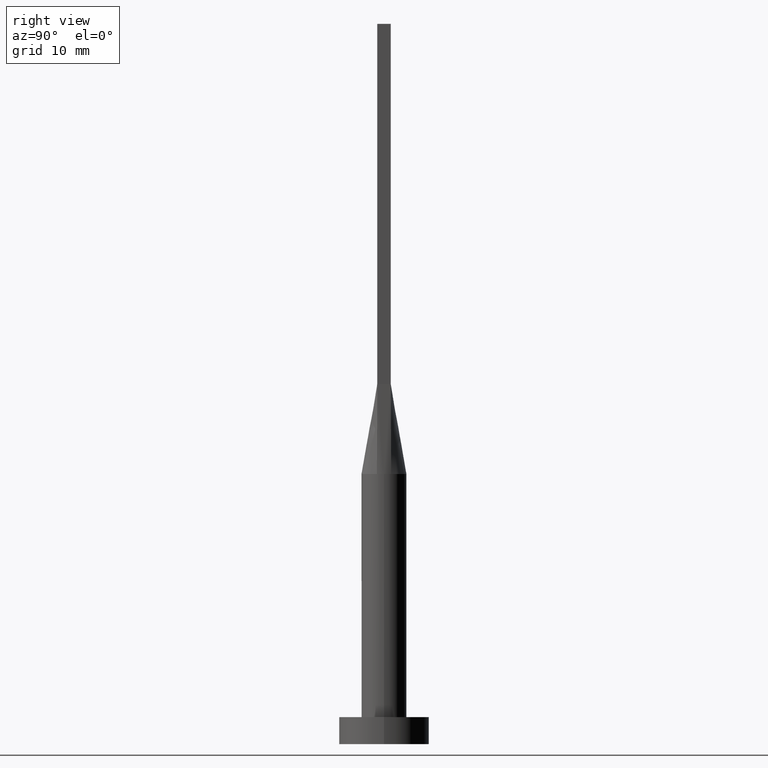
[diagram: clean part render]
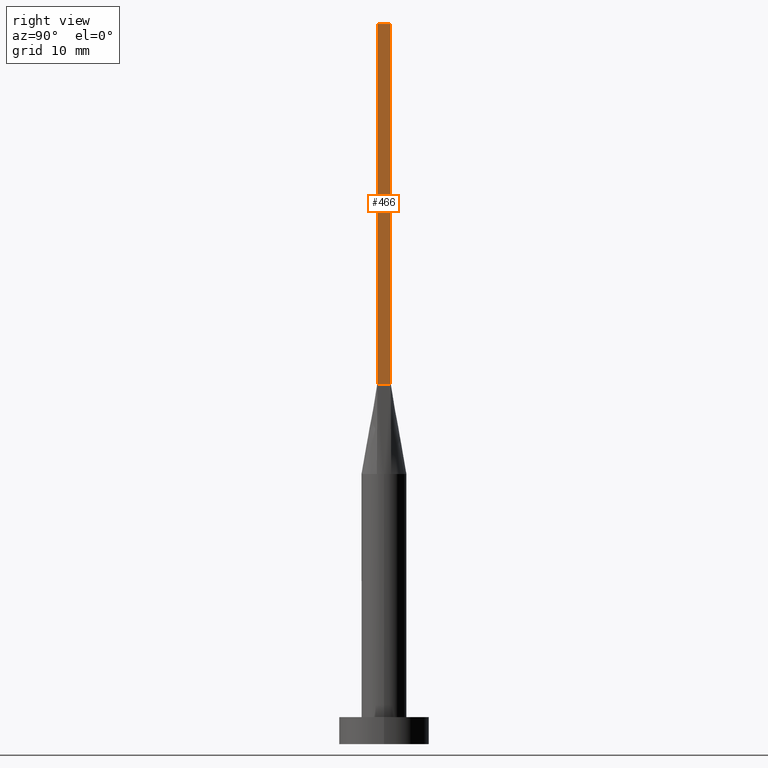
[diagram: same view with one face highlighted and labeled with its STEP entity id]
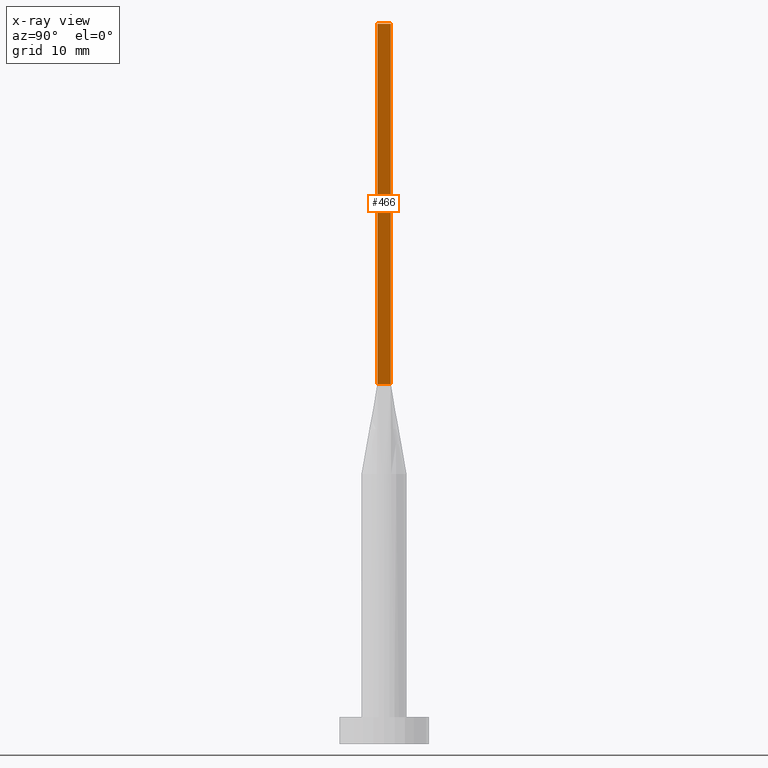
[diagram: x-ray of the same camera — body ghosted, the highlighted face saturated]
A machine part, right view. The second image highlights one B-rep face of the part: STEP entity #466.
The next image is the same camera in x-ray: the body ghosted, the highlighted face saturated — about 0% of this face is hidden behind the body in this view.
In plain terms, the highlighted planar face has unit normal (-1, -0, 0).
Its self-contained STEP definition (entity closure, byte-faithful):
#63 = EDGE_CURVE ( 'NONE', #205, #204, #534, .T. ) ;
#86 = CARTESIAN_POINT ( 'NONE',  ( 2.250000000000000000, -0.7499999999999997780, 80.00000000000000000 ) ) ;
#121 = FACE_OUTER_BOUND ( 'NONE', #271, .T. ) ;
#146 = LINE ( 'NONE', #281, #406 ) ;
#166 = CARTESIAN_POINT ( 'NONE',  ( 2.250000000000000000, -0.7499999999999997780, 80.00000000000000000 ) ) ;
#172 = ORIENTED_EDGE ( 'NONE', *, *, #63, .F. ) ;
#190 = CARTESIAN_POINT ( 'NONE',  ( 2.250000000000000000, -0.7499999999999997780, 40.00000000000000000 ) ) ;
#202 = DIRECTION ( 'NONE',  ( -0.000000000000000000, -0.000000000000000000, -1.000000000000000000 ) ) ;
#204 = VERTEX_POINT ( 'NONE', #421 ) ;
#205 = VERTEX_POINT ( 'NONE', #216 ) ;
#210 = ORIENTED_EDGE ( 'NONE', *, *, #356, .T. ) ;
#216 = CARTESIAN_POINT ( 'NONE',  ( 2.249999999999999556, 0.7500000000000002220, 80.00000000000000000 ) ) ;
#229 = CARTESIAN_POINT ( 'NONE',  ( 2.250000000000000000, -0.7499999999999997780, 80.00000000000000000 ) ) ;
#238 = DIRECTION ( 'NONE',  ( -2.891205793294678326E-16, 1.000000000000000000, -0.000000000000000000 ) ) ;
#271 = EDGE_LOOP ( 'NONE', ( #210, #172, #570, #521 ) ) ;
#281 = CARTESIAN_POINT ( 'NONE',  ( 2.249999999999999556, 0.7500000000000002220, 40.00000000000000000 ) ) ;
#291 = DIRECTION ( 'NONE',  ( -2.891205793294678326E-16, 1.000000000000000000, 0.000000000000000000 ) ) ;
#299 = CARTESIAN_POINT ( 'NONE',  ( 2.250000000000000000, -0.7499999999999997780, 80.00000000000000000 ) ) ;
#300 = VERTEX_POINT ( 'NONE', #190 ) ;
#304 = LINE ( 'NONE', #166, #450 ) ;
#317 = EDGE_CURVE ( 'NONE', #564, #205, #517, .T. ) ;
#335 = AXIS2_PLACEMENT_3D ( 'NONE', #86, #491, #447 ) ;
#353 = DIRECTION ( 'NONE',  ( -0.000000000000000000, -0.000000000000000000, -1.000000000000000000 ) ) ;
#356 = EDGE_CURVE ( 'NONE', #300, #204, #146, .T. ) ;
#365 = VECTOR ( 'NONE', #353, 1000.000000000000000 ) ;
#406 = VECTOR ( 'NONE', #238, 1000.000000000000000 ) ;
#421 = CARTESIAN_POINT ( 'NONE',  ( 2.249999999999999556, 0.7500000000000002220, 40.00000000000000000 ) ) ;
#430 = EDGE_CURVE ( 'NONE', #564, #300, #304, .T. ) ;
#444 = PLANE ( 'NONE',  #335 ) ;
#447 = DIRECTION ( 'NONE',  ( 2.891205793294678326E-16, -1.000000000000000000, 0.000000000000000000 ) ) ;
#450 = VECTOR ( 'NONE', #202, 1000.000000000000000 ) ;
#466 = ADVANCED_FACE ( 'NONE', ( #121 ), #444, .F. ) ;
#473 = VECTOR ( 'NONE', #291, 1000.000000000000000 ) ;
#491 = DIRECTION ( 'NONE',  ( -1.000000000000000000, -2.891205793294678326E-16, 0.000000000000000000 ) ) ;
#517 = LINE ( 'NONE', #229, #473 ) ;
#521 = ORIENTED_EDGE ( 'NONE', *, *, #430, .T. ) ;
#534 = LINE ( 'NONE', #578, #365 ) ;
#564 = VERTEX_POINT ( 'NONE', #299 ) ;
#570 = ORIENTED_EDGE ( 'NONE', *, *, #317, .F. ) ;
#578 = CARTESIAN_POINT ( 'NONE',  ( 2.249999999999999556, 0.7500000000000002220, 80.00000000000000000 ) ) ;